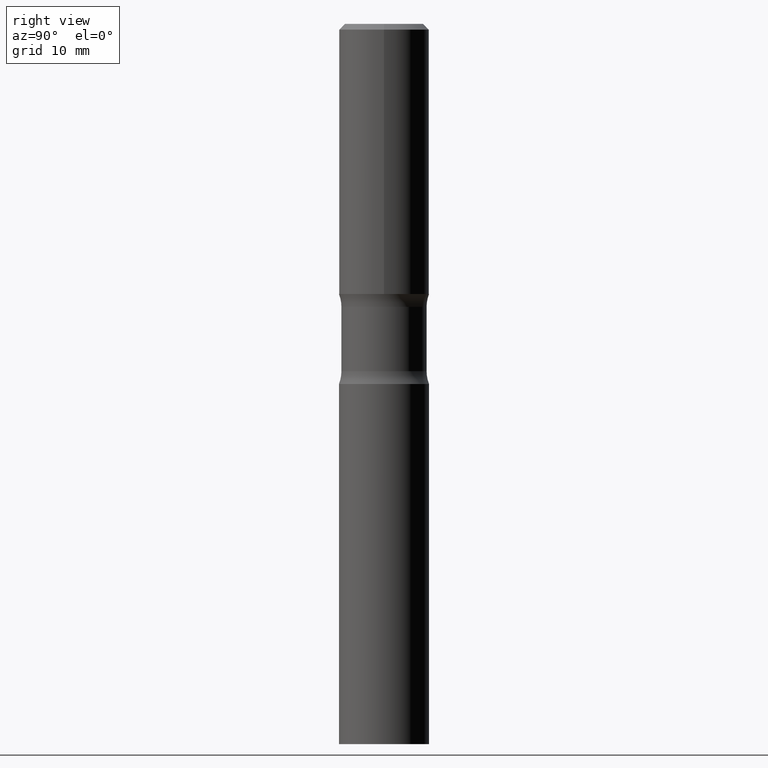
[diagram: clean part render]
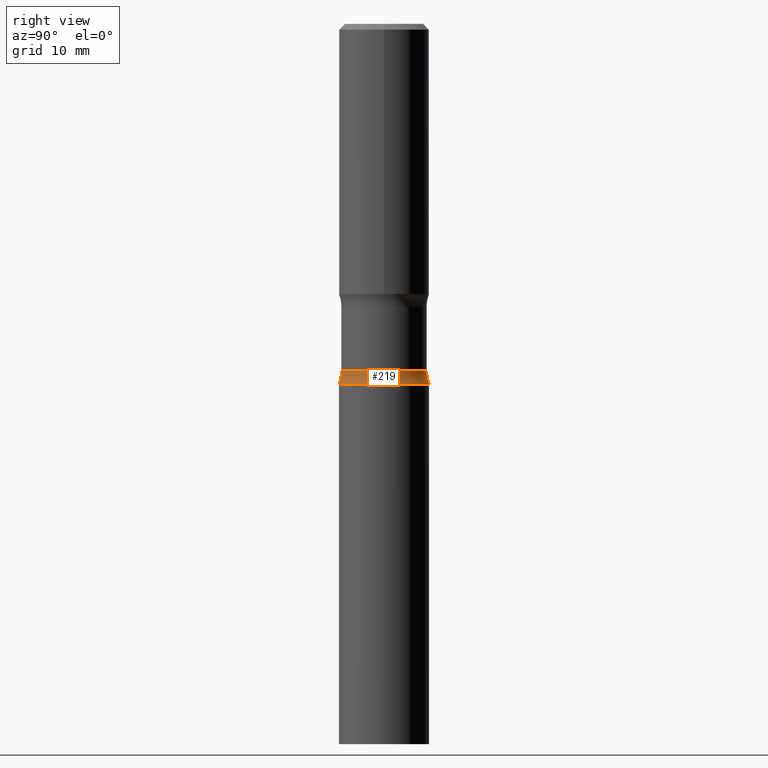
[diagram: same view with one face highlighted and labeled with its STEP entity id]
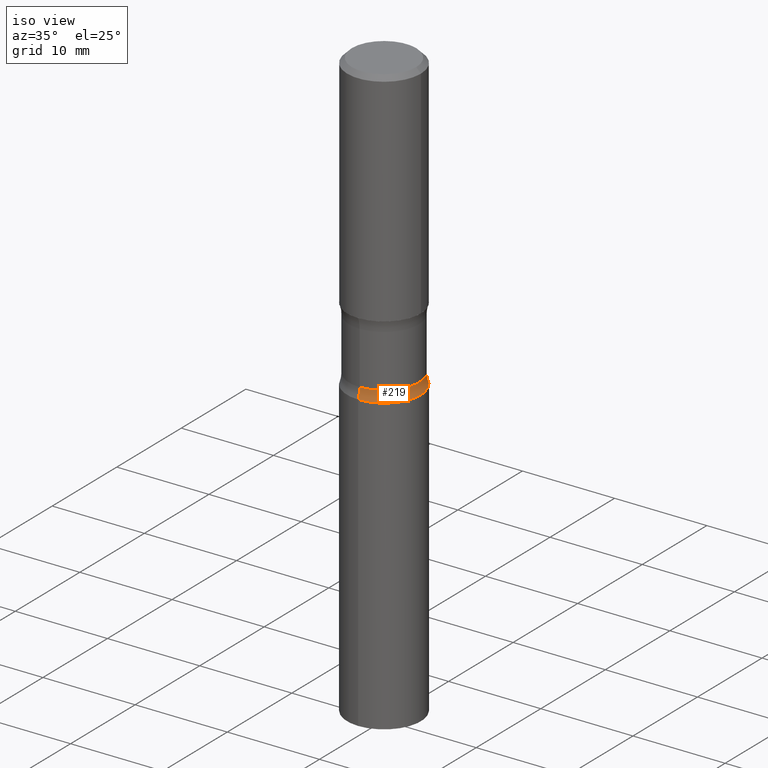
[diagram: same view with one face highlighted and labeled with its STEP entity id]
A machine part, right view. The second image highlights one B-rep face of the part: STEP entity #219.
A second angle (iso view) of the same face is appended — the face is thin or edge-on in the first view.
In plain terms, the highlighted toroidal blend (fillet) surface has major radius 6.9596 mm and minor (blend) radius 3.175 mm.
Its self-contained STEP definition (entity closure, byte-faithful):
#11 = CARTESIAN_POINT ( 'NONE',  ( 2.966320567988407078E-29, -4.246352965193348549E-15, -1.214592715817431445 ) ) ;
#52 = AXIS2_PLACEMENT_3D ( 'NONE', #392, #192, #350 ) ;
#58 = EDGE_CURVE ( 'NONE', #268, #73, #444, .T. ) ;
#62 = DIRECTION ( 'NONE',  ( 2.467550331507131883E-29, -3.459859337779677518E-15, -1.000000000000000000 ) ) ;
#71 = EDGE_LOOP ( 'NONE', ( #382, #172, #115, #146 ) ) ;
#73 = VERTEX_POINT ( 'NONE', #321 ) ;
#99 = AXIS2_PLACEMENT_3D ( 'NONE', #11, #114, #117 ) ;
#114 = DIRECTION ( 'NONE',  ( 2.467550331507131883E-29, -3.459859337779677518E-15, -1.000000000000000000 ) ) ;
#115 = ORIENTED_EDGE ( 'NONE', *, *, #425, .T. ) ;
#117 = DIRECTION ( 'NONE',  ( 6.982962677686265922E-15, 1.000000000000000000, -3.666910058609746496E-15 ) ) ;
#146 = ORIENTED_EDGE ( 'NONE', *, *, #374, .T. ) ;
#153 = CARTESIAN_POINT ( 'NONE',  ( -1.051371318158457585E-15, -0.1490000000000043789, -1.214592715817431001 ) ) ;
#166 = DIRECTION ( 'NONE',  ( 6.982962677686265133E-15, 1.000000000000000000, -3.459859337779677518E-15 ) ) ;
#172 = ORIENTED_EDGE ( 'NONE', *, *, #58, .F. ) ;
#192 = DIRECTION ( 'NONE',  ( 2.467550331507131883E-29, -3.459859337779677518E-15, -1.000000000000000000 ) ) ;
#197 = EDGE_CURVE ( 'NONE', #73, #426, #261, .T. ) ;
#204 = CARTESIAN_POINT ( 'NONE',  ( 1.040461438975284166E-15, 0.1489999999999958580, -1.214592715817432111 ) ) ;
#208 = DIRECTION ( 'NONE',  ( 6.860497997771530774E-15, 1.000000000000000000, 0.000000000000000000 ) ) ;
#217 = CIRCLE ( 'NONE', #99, 0.1490000000000001046 ) ;
#218 = AXIS2_PLACEMENT_3D ( 'NONE', #387, #479, #346 ) ;
#219 = ADVANCED_FACE ( 'NONE', ( #492 ), #270, .F. ) ;
#261 = CIRCLE ( 'NONE', #473, 0.1250000000000000000 ) ;
#268 = VERTEX_POINT ( 'NONE', #287 ) ;
#270 = TOROIDAL_SURFACE ( 'NONE', #419, 0.2740000000000000213, 0.1250000000000000000 ) ;
#283 = DIRECTION ( 'NONE',  ( 1.000000000000000000, -6.860497997771530774E-15, 4.841186137447993302E-29 ) ) ;
#287 = CARTESIAN_POINT ( 'NONE',  ( 1.099816621735617260E-15, 0.1574999999999955880, -1.259900000000000464 ) ) ;
#321 = CARTESIAN_POINT ( 'NONE',  ( -1.080528434648985408E-15, -0.1575000000000043865, -1.259899999999999354 ) ) ;
#333 = CARTESIAN_POINT ( 'NONE',  ( 2.970248598751217495E-29, -4.240727801571377974E-15, -1.214592715817431667 ) ) ;
#346 = DIRECTION ( 'NONE',  ( -6.982962677686265922E-15, -1.000000000000000000, 0.000000000000000000 ) ) ;
#350 = DIRECTION ( 'NONE',  ( 6.982962677686265922E-15, 1.000000000000000000, -3.469013325287954477E-15 ) ) ;
#374 = EDGE_CURVE ( 'NONE', #503, #426, #217, .T. ) ;
#382 = ORIENTED_EDGE ( 'NONE', *, *, #197, .F. ) ;
#387 = CARTESIAN_POINT ( 'NONE',  ( 1.913331773686066519E-15, 0.2739999999999958025, -1.214592715817432556 ) ) ;
#392 = CARTESIAN_POINT ( 'NONE',  ( 3.078118572092791150E-29, -4.403109795441844848E-15, -1.259899999999999798 ) ) ;
#419 = AXIS2_PLACEMENT_3D ( 'NONE', #333, #62, #166 ) ;
#425 = EDGE_CURVE ( 'NONE', #268, #503, #454, .T. ) ;
#426 = VERTEX_POINT ( 'NONE', #153 ) ;
#444 = CIRCLE ( 'NONE', #52, 0.1574999999999999456 ) ;
#445 = CARTESIAN_POINT ( 'NONE',  ( -1.879776451389370025E-15, -0.2740000000000042957, -1.214592715817430779 ) ) ;
#454 = CIRCLE ( 'NONE', #218, 0.1250000000000000000 ) ;
#473 = AXIS2_PLACEMENT_3D ( 'NONE', #445, #283, #208 ) ;
#479 = DIRECTION ( 'NONE',  ( -1.000000000000000000, 6.982962677686265922E-15, -4.883557194083112340E-29 ) ) ;
#492 = FACE_OUTER_BOUND ( 'NONE', #71, .T. ) ;
#503 = VERTEX_POINT ( 'NONE', #204 ) ;